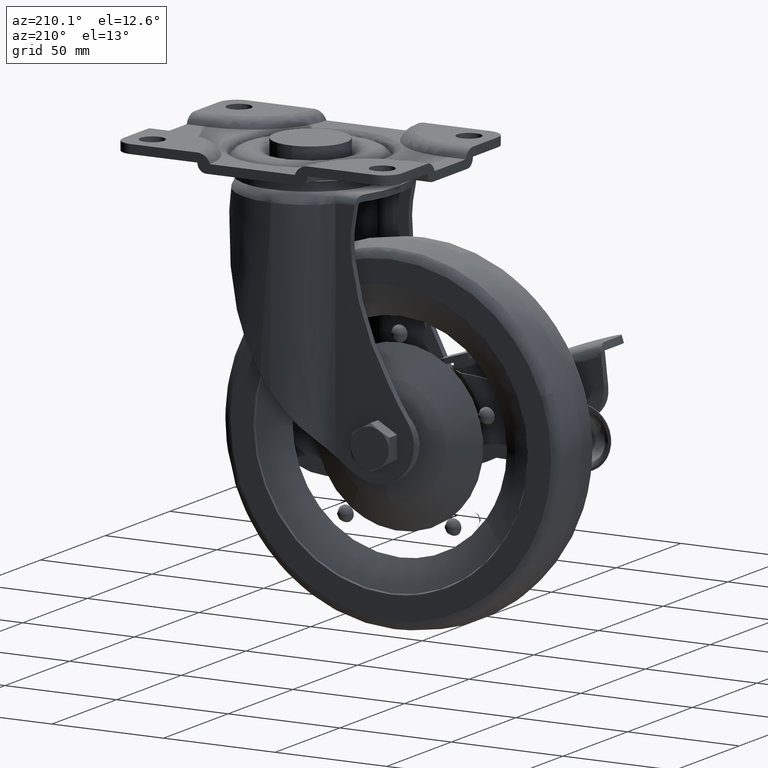
[diagram: clean part render]
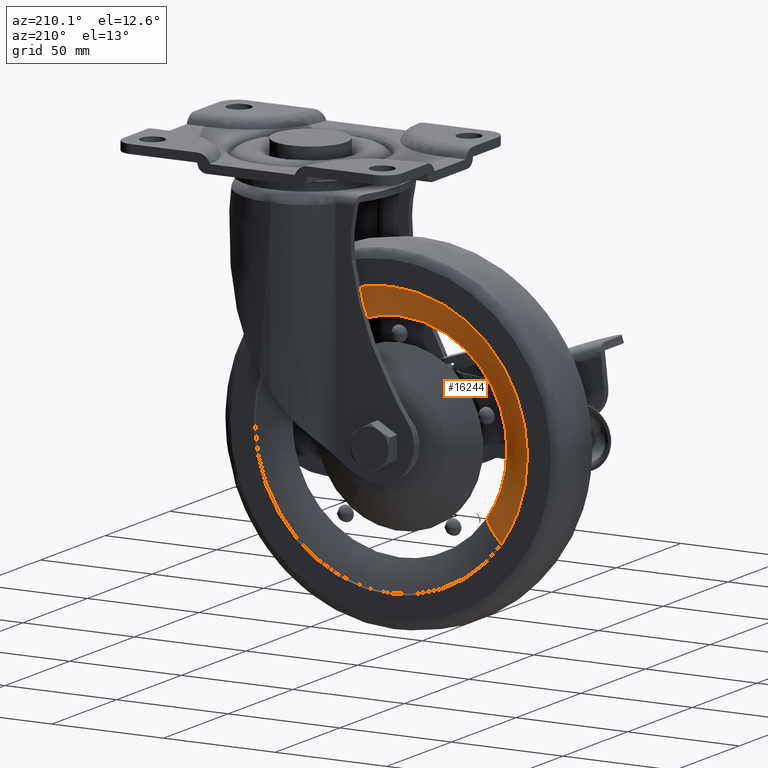
[diagram: same view with one face highlighted and labeled with its STEP entity id]
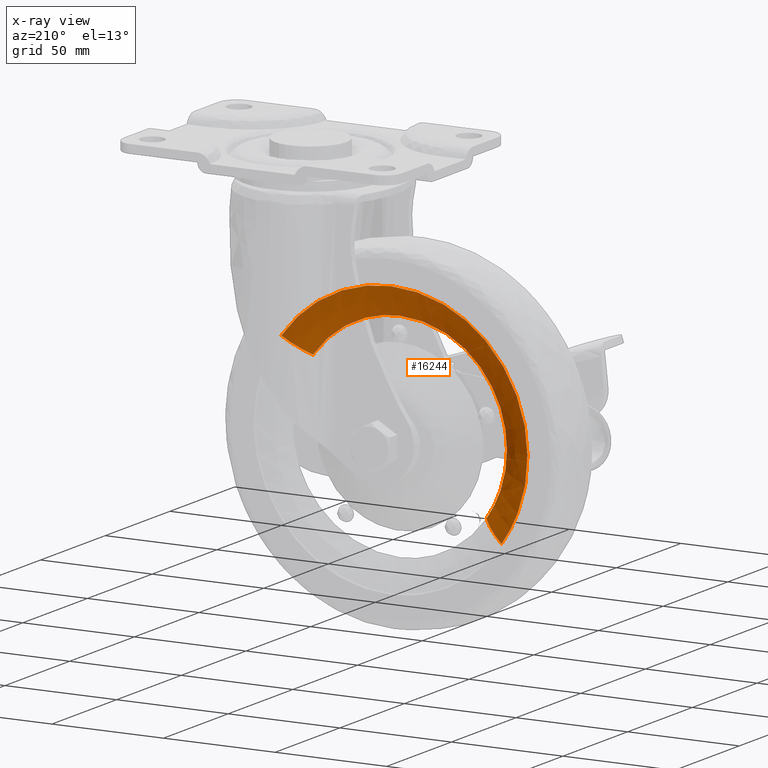
[diagram: x-ray of the same camera — body ghosted, the highlighted face saturated]
A machine part, auxiliary view. The second image highlights one B-rep face of the part: STEP entity #16244.
The next image is the same camera in x-ray: the body ghosted, the highlighted face saturated — about 0% of this face is hidden behind the body in this view.
In plain terms, the highlighted face is a freeform B-spline surface patch.
Its self-contained STEP definition (entity closure, byte-faithful):
#15981=CARTESIAN_POINT('',(-82.832815730159780,7.000000000225730,-140.713692110250010));
#15982=VERTEX_POINT('',#15981);
#15998=CARTESIAN_POINT('',(-44.0,7.0,-64.500000000000000));
#15999=VERTEX_POINT('',#15998);
#16000=CARTESIAN_POINT('',(-44.0,7.0,-64.500000000000000));
#16001=CARTESIAN_POINT('',(-92.000000000052665,7.000000000057508,-64.500000000038256));
#16002=CARTESIAN_POINT('',(-92.000000000156021,7.000000000170372,-112.500000000113300));
#16003=CARTESIAN_POINT('',(-92.000000000189601,7.000000000207044,-128.096145419359030));
#16004=CARTESIAN_POINT('',(-82.832815730159780,7.000000000225731,-140.713692110249980));
#16012=(BOUNDED_CURVE()B_SPLINE_CURVE(2,(#16000,#16001,#16002,#16003,#16004),.UNSPECIFIED.,.F.,.U.)B_SPLINE_CURVE_WITH_KNOTS((3,2,3),(0.500000000000000,0.750000000000000,0.851249659000501),.UNSPECIFIED.)CURVE()GEOMETRIC_REPRESENTATION_ITEM()RATIONAL_B_SPLINE_CURVE((1.0,0.707106781186548,1.0,0.881378645886315,0.858840265006137))REPRESENTATION_ITEM(''));
#16013=EDGE_CURVE('',#15999,#15982,#16012,.T.);
#16015=CARTESIAN_POINT('',(-5.167184269840220,7.000000000225727,-84.286307889749992));
#16016=VERTEX_POINT('',#16015);
#16017=CARTESIAN_POINT('',(-5.167184269840213,7.000000000225727,-84.286307889749992));
#16018=CARTESIAN_POINT('',(-19.542778424211654,7.000000000112864,-64.499999999924910));
#16019=CARTESIAN_POINT('',(-44.0,7.0,-64.500000000000000));
#16027=(BOUNDED_CURVE()B_SPLINE_CURVE(2,(#16017,#16018,#16019),.UNSPECIFIED.,.F.,.U.)B_SPLINE_CURVE_WITH_KNOTS((3,3),(0.351249659000501,0.500000000000000),.UNSPECIFIED.)CURVE()GEOMETRIC_REPRESENTATION_ITEM()RATIONAL_B_SPLINE_CURVE((0.858840265006137,0.825728135300232,1.0))REPRESENTATION_ITEM(''));
#16028=EDGE_CURVE('',#16016,#15999,#16027,.T.);
#16090=CARTESIAN_POINT('',(-93.350036656308120,13.500000000710100,-148.354900389635900));
#16091=VERTEX_POINT('',#16090);
#16107=CARTESIAN_POINT('',(-82.832815730159780,7.000000000225730,-140.713692110250040));
#16108=CARTESIAN_POINT('',(-87.391902955441225,11.979316547966910,-144.026062868358480));
#16109=CARTESIAN_POINT('',(-93.350036656308120,13.500000000710097,-148.354900389635840));
#16117=(BOUNDED_CURVE()B_SPLINE_CURVE(2,(#16107,#16108,#16109),.UNSPECIFIED.,.F.,.U.)B_SPLINE_CURVE_WITH_KNOTS((3,3),(-1.454678585784555,-0.540671111986542),.UNSPECIFIED.)CURVE()GEOMETRIC_REPRESENTATION_ITEM()RATIONAL_B_SPLINE_CURVE((0.939979969644451,0.908536471200670,0.940301563349255))REPRESENTATION_ITEM(''));
#16118=EDGE_CURVE('',#15982,#16091,#16117,.T.);
#16122=CARTESIAN_POINT('',(5.350036656308106,13.500000000710109,-76.645099610364156));
#16123=VERTEX_POINT('',#16122);
#16124=CARTESIAN_POINT('',(-5.167184269840220,7.000000000225727,-84.286307889749992));
#16125=CARTESIAN_POINT('',(-0.608097044558775,11.979316547966906,-80.973937131641478));
#16126=CARTESIAN_POINT('',(5.350036656308106,13.500000000710111,-76.645099610364156));
#16134=(BOUNDED_CURVE()B_SPLINE_CURVE(2,(#16124,#16125,#16126),.UNSPECIFIED.,.F.,.U.)B_SPLINE_CURVE_WITH_KNOTS((3,3),(-1.454678585784556,-0.540671111986545),.UNSPECIFIED.)CURVE()GEOMETRIC_REPRESENTATION_ITEM()RATIONAL_B_SPLINE_CURVE((0.939979969644451,0.908536471200670,0.940301563349255))REPRESENTATION_ITEM(''));
#16135=EDGE_CURVE('',#16016,#16123,#16134,.T.);
#16170=CARTESIAN_POINT('',(-5.601615849124322,6.513122754320327,-84.601940907701788));
#16171=CARTESIAN_POINT('',(-33.499674941422526,6.513122754320329,-46.203556756826117));
#16172=CARTESIAN_POINT('',(-71.898059092298197,6.513122754320327,-74.101615849124300));
#16173=CARTESIAN_POINT('',(-110.296443243173880,6.513122754320329,-101.999674941422480));
#16174=CARTESIAN_POINT('',(-82.398384150875671,6.513122754320327,-140.398059092298150));
#16175=CARTESIAN_POINT('',(-0.684398051386694,12.167641205399967,-81.029373058180553));
#16176=CARTESIAN_POINT('',(-32.155024993206133,12.167641205399972,-37.713771109567261));
#16177=CARTESIAN_POINT('',(-75.470626941819432,12.167641205399967,-69.184398051386694));
#16178=CARTESIAN_POINT('',(-118.786228890432750,12.167641205399972,-100.655024993206110));
#16179=CARTESIAN_POINT('',(-87.315601948613306,12.167641205399967,-143.970626941819400));
#16180=CARTESIAN_POINT('',(5.925602949359707,13.637417368431995,-76.226926220980275));
#16181=CARTESIAN_POINT('',(-30.347470829660004,13.637417368431999,-26.301323271620589));
#16182=CARTESIAN_POINT('',(-80.273073779019697,13.637417368431995,-62.574397050640286));
#16183=CARTESIAN_POINT('',(-130.198676728379380,13.637417368431999,-98.847470829659983));
#16184=CARTESIAN_POINT('',(-93.925602949359700,13.637417368431995,-148.773073779019680));
#16192=(BOUNDED_SURFACE()B_SPLINE_SURFACE(2,2,((#16170,#16175,#16180),(#16171,#16176,#16181),(#16172,#16177,#16182),(#16173,#16178,#16183),(#16174,#16179,#16184)),.UNSPECIFIED.,.F.,.F.,.U.)B_SPLINE_SURFACE_WITH_KNOTS((3,2,3),(3,3),(0.0,102.246860053941900,204.493720107883800),(0.0,16.259729571823630),.UNSPECIFIED.)GEOMETRIC_REPRESENTATION_ITEM()RATIONAL_B_SPLINE_SURFACE(((0.943278876737079,0.905221498546605,0.943632601601461),(0.666998890290818,0.640088260098153,0.667249011541097),(0.943278876737079,0.905221498546605,0.943632601601461),(0.666998890290818,0.640088260098153,0.667249011541097),(0.943278876737079,0.905221498546605,0.943632601601461)))REPRESENTATION_ITEM('')SURFACE());
#16193=CARTESIAN_POINT('',(-104.995183696431700,13.500000002738551,-111.733471567025900));
#16194=VERTEX_POINT('',#16193);
#16195=CARTESIAN_POINT('',(-104.995183696431610,13.500000002738554,-111.733471567025930));
#16196=CARTESIAN_POINT('',(-104.999999999995590,13.500000002721080,-112.116720652446730));
#16197=CARTESIAN_POINT('',(-104.999999999991200,13.500000002703461,-112.499999999993610));
#16198=CARTESIAN_POINT('',(-104.999999999761910,13.500000001792472,-132.320101470125760));
#16199=CARTESIAN_POINT('',(-93.350036656308120,13.500000000710104,-148.354900389635930));
#16207=(BOUNDED_CURVE()B_SPLINE_CURVE(2,(#16195,#16196,#16197,#16198,#16199),.UNSPECIFIED.,.F.,.U.)B_SPLINE_CURVE_WITH_KNOTS((3,2,3),(0.747784295921470,0.750000000000000,0.851249659000674),.UNSPECIFIED.)CURVE()GEOMETRIC_REPRESENTATION_ITEM()RATIONAL_B_SPLINE_CURVE((0.994854295643418,0.997404141202005,1.0,0.881378645886113,0.858840265006060))REPRESENTATION_ITEM(''));
#16208=EDGE_CURVE('',#16194,#16091,#16207,.T.);
#16209=ORIENTED_EDGE('',*,*,#16208,.F.);
#16210=CARTESIAN_POINT('',(-44.0,13.500000000000000,-51.500000000000007));
#16211=VERTEX_POINT('',#16210);
#16212=CARTESIAN_POINT('',(-44.0,13.500000000000000,-51.500000000000007));
#16213=CARTESIAN_POINT('',(-104.238227724257640,13.500000001369274,-51.500000000000028));
#16214=CARTESIAN_POINT('',(-104.995183696431610,13.500000002738554,-111.733471567025930));
#16222=(BOUNDED_CURVE()B_SPLINE_CURVE(2,(#16212,#16213,#16214),.UNSPECIFIED.,.F.,.U.)B_SPLINE_CURVE_WITH_KNOTS((3,3),(0.500000000000000,0.747784295921470),.UNSPECIFIED.)CURVE()GEOMETRIC_REPRESENTATION_ITEM()RATIONAL_B_SPLINE_CURVE((1.0,0.709702639984543,0.994854295643418))REPRESENTATION_ITEM(''));
#16223=EDGE_CURVE('',#16211,#16194,#16222,.T.);
#16224=ORIENTED_EDGE('',*,*,#16223,.F.);
#16225=CARTESIAN_POINT('',(5.350036656308106,13.500000000710104,-76.645099610364156));
#16226=CARTESIAN_POINT('',(-12.918947581177285,13.500000000214843,-51.500000000169443));
#16227=CARTESIAN_POINT('',(-44.0,13.500000000000000,-51.500000000000007));
#16235=(BOUNDED_CURVE()B_SPLINE_CURVE(2,(#16225,#16226,#16227),.UNSPECIFIED.,.F.,.U.)B_SPLINE_CURVE_WITH_KNOTS((3,3),(0.351249659000674,0.500000000000000),.UNSPECIFIED.)CURVE()GEOMETRIC_REPRESENTATION_ITEM()RATIONAL_B_SPLINE_CURVE((0.858840265006060,0.825728135300435,1.0))REPRESENTATION_ITEM(''));
#16236=EDGE_CURVE('',#16123,#16211,#16235,.T.);
#16237=ORIENTED_EDGE('',*,*,#16236,.F.);
#16238=ORIENTED_EDGE('',*,*,#16135,.F.);
#16239=ORIENTED_EDGE('',*,*,#16028,.T.);
#16240=ORIENTED_EDGE('',*,*,#16013,.T.);
#16241=ORIENTED_EDGE('',*,*,#16118,.T.);
#16242=EDGE_LOOP('',(#16209,#16224,#16237,#16238,#16239,#16240,#16241));
#16243=FACE_OUTER_BOUND('',#16242,.T.);
#16244=ADVANCED_FACE('',(#16243),#16192,.T.);